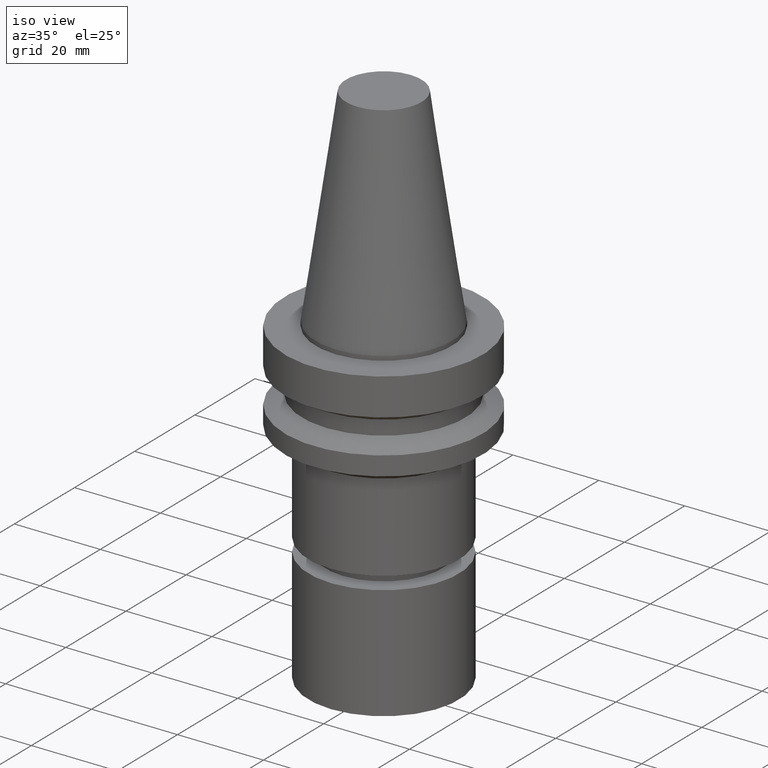
[diagram: clean part render]
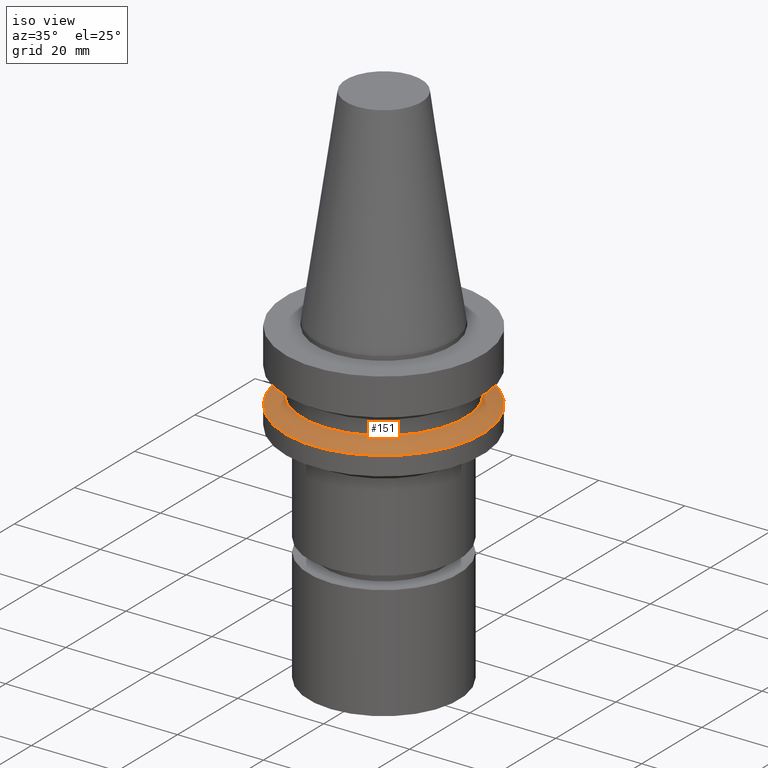
[diagram: same view with one face highlighted and labeled with its STEP entity id]
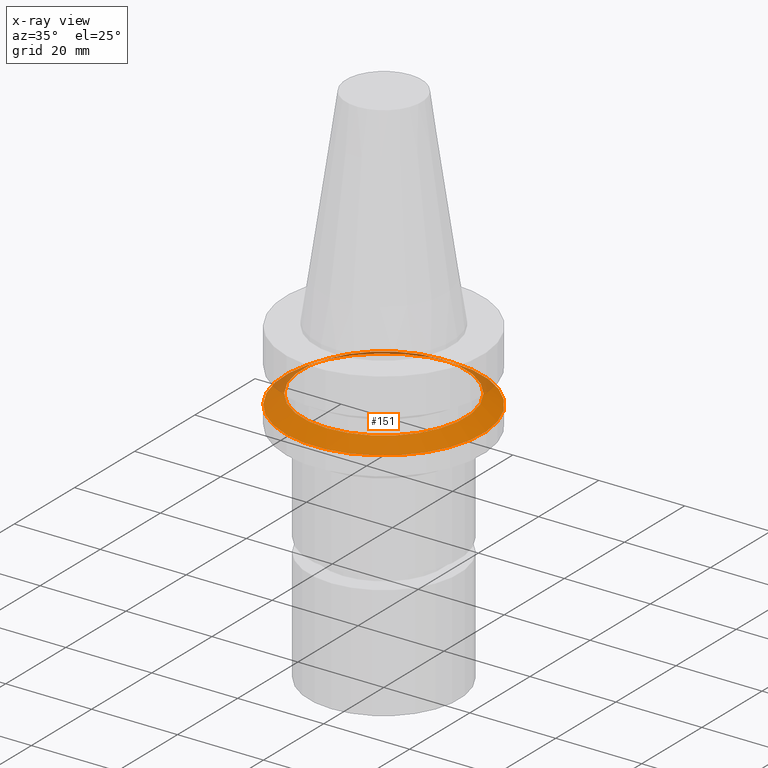
[diagram: x-ray of the same camera — body ghosted, the highlighted face saturated]
A machine part, iso view. The second image highlights one B-rep face of the part: STEP entity #151.
The next image is the same camera in x-ray: the body ghosted, the highlighted face saturated — about 11% of this face is hidden behind the body in this view.
In plain terms, the highlighted conical surface has half-angle 60 deg.
Its self-contained STEP definition (entity closure, byte-faithful):
#77=EDGE_CURVE('Unnamed[1]',#204,#204,#205,.T.);
#151=ADVANCED_FACE('Unnamed[1]',(#320,#321),#322,.T.);
#180=EDGE_CURVE('Unnamed[1]',#362,#362,#363,.T.);
#204=VERTEX_POINT('',#381);
#205=CIRCLE('',#382,23.0);
#320=FACE_BOUND('',#526,.T.);
#321=FACE_BOUND('',#527,.T.);
#322=CONICAL_SURFACE('',#528,21.0,1.04719755058882);
#362=VERTEX_POINT('',#577);
#363=CIRCLE('',#578,19.0);
#381=CARTESIAN_POINT('',(1.07768918324967E-015,23.0,-17.6));
#382=AXIS2_PLACEMENT_3D('',#583,#584,#585);
#526=EDGE_LOOP('',(#714));
#527=EDGE_LOOP('',(#715));
#528=AXIS2_PLACEMENT_3D('',#716,#717,#718);
#577=CARTESIAN_POINT('',(9.36279151221199E-016,19.0,-15.29059892));
#578=AXIS2_PLACEMENT_3D('',#758,#759,#760);
#583=CARTESIAN_POINT('',(1.07768918324967E-015,2.15537836649934E-015,-17.6));
#584=DIRECTION('',(6.12323399573677E-017,1.22464679914735E-016,-1.0));
#585=DIRECTION('',(-1.23259516440783E-032,1.0,1.22464679914735E-016));
#714=ORIENTED_EDGE('',*,*,#77,.F.);
#715=ORIENTED_EDGE('',*,*,#180,.T.);
#716=CARTESIAN_POINT('',(1.00698416723543E-015,2.01396833447087E-015,-16.44529946));
#717=DIRECTION('',(6.12323399573677E-017,1.22464679914735E-016,-1.0));
#718=DIRECTION('',(-1.23259516440783E-032,1.0,1.22464679914735E-016));
#758=CARTESIAN_POINT('',(9.36279151221199E-016,1.8725583024424E-015,-15.29059892));
#759=DIRECTION('',(6.12323399573677E-017,1.22464679914735E-016,-1.0));
#760=DIRECTION('',(-1.23259516440783E-032,1.0,1.22464679914735E-016));